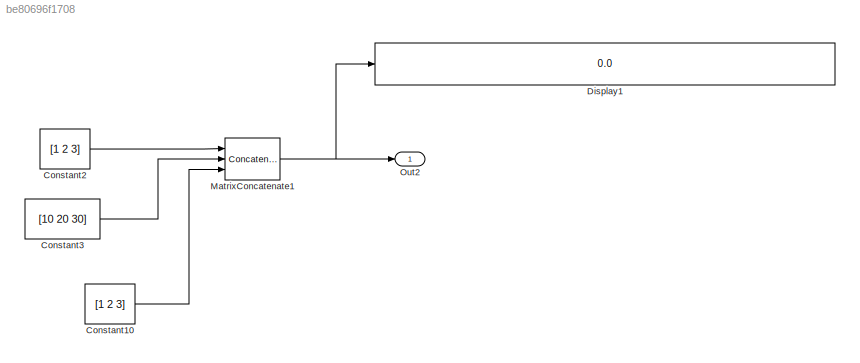
MODEL slx_be80696f1708
KIND model
CONFIG AbsTol = auto
CONFIG EnableMultiTasking = on
CONFIG FixedStep = 0.200000
CONFIG MaxStep = auto
CONFIG MinStep = auto
CONFIG RelTol = 1e-3
CONFIG SampleTimeConstraint = Unconstrained
CONFIG Solver = FixedStepDiscrete
CONFIG SolverName = FixedStepDiscrete
CONFIG StartTime = 0.0
CONFIG StopTime = 10.0
WORKSPACE source: MAT-file member
WORKSPACE already_pp = 0
BLOCK [Constant] Constant10
  Value = [1 2 3]
BLOCK [Constant] Constant2
  Value = [1 2 3]
BLOCK [Constant] Constant3
  Value = [10  20  30]
BLOCK [Display] Display1
  Decimation = 1
  Ports = [1]
BLOCK [Concatenate] MatrixConcatenate1
  ConcatenateDimension = 2
  NumInputs = 3
  Ports = [3, 1]
BLOCK [Outport] Out2
  IconDisplay = Port number
LINE Constant10:1 -> MatrixConcatenate1:3
LINE Constant2:1 -> MatrixConcatenate1:1
LINE Constant3:1 -> MatrixConcatenate1:2
NET MatrixConcatenate1:1 -> Display1:1, Out2:1
note: NET lines group one-source signal fan-out (src -> all destinations, sorted); 1:1 wires keep LINE
